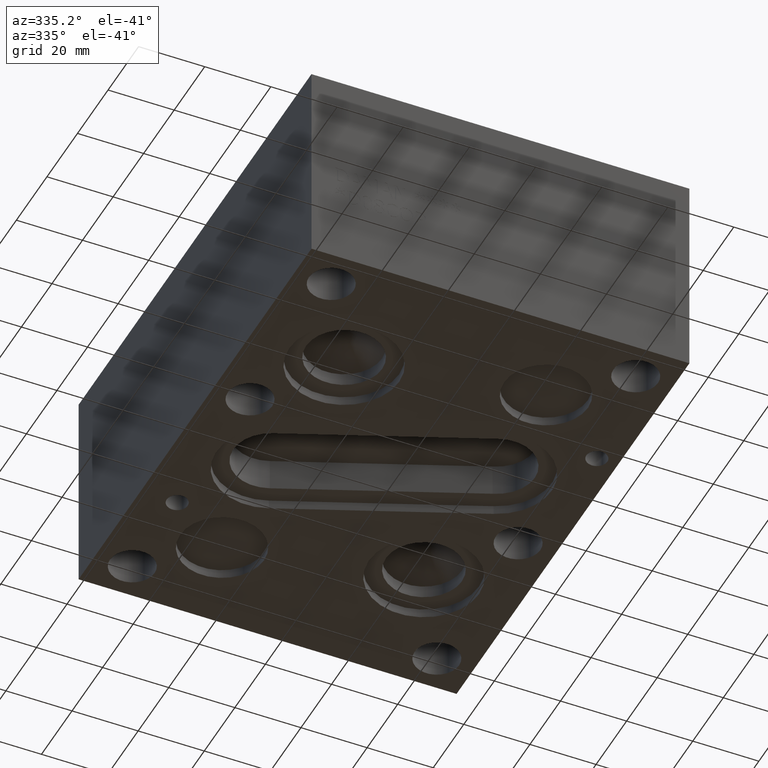
[diagram: clean part render]
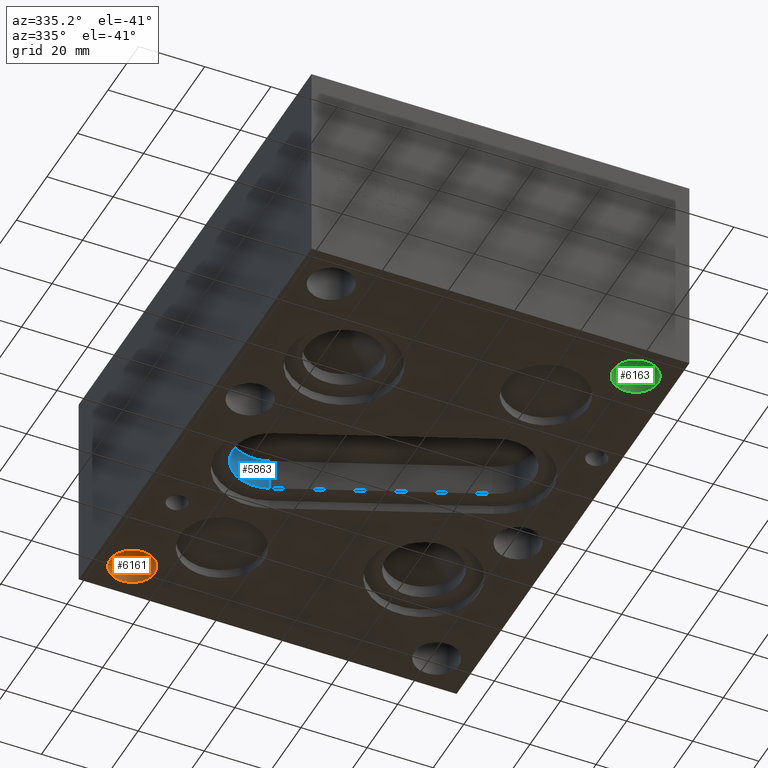
[diagram: same view with three faces highlighted in distinct colors, each labeled with its STEP entity id]
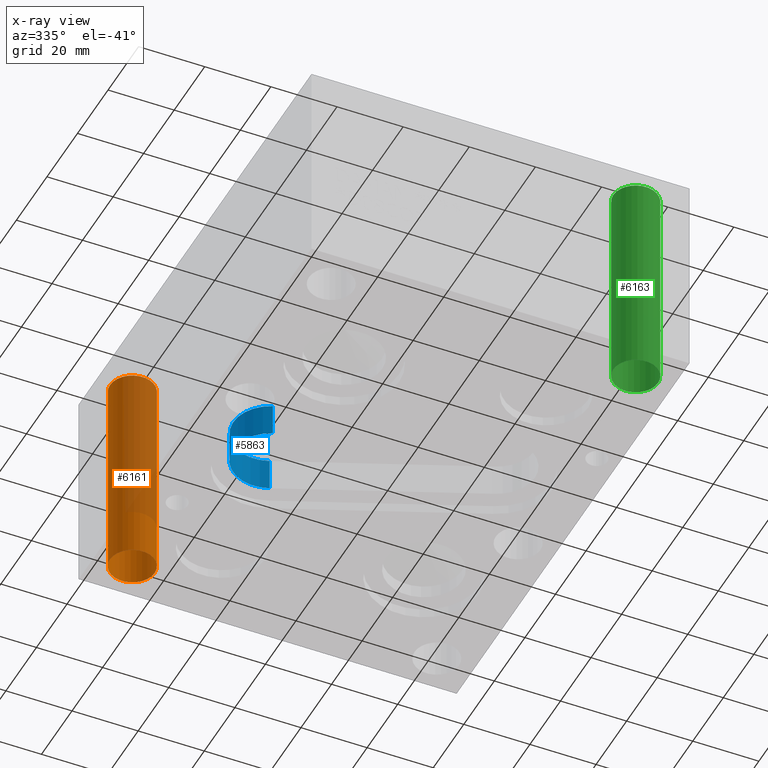
[diagram: x-ray of the same camera — body ghosted, the three highlighted faces saturated]
A machine part, auxiliary view with three faces highlighted in distinct colors.
The next image is the same camera in x-ray (body ghosted, the three faces saturated) — at least one of them is partly hidden behind the body in this view.
Their STEP definitions:

[orange] entity #6161 — the highlighted cylindrical surface (bore or boss wall) has radius 6.7437 mm, axis along (0, 0, -1).
#612=CIRCLE('',#6206,6.7437);
#613=CIRCLE('',#6207,6.7437);
#651=CIRCLE('',#6452,6.7437);
#674=CYLINDRICAL_SURFACE('',#6451,6.7437);
#978=FACE_OUTER_BOUND('',#1328,.T.);
#1328=EDGE_LOOP('',(#5614,#5615,#5616,#5617,#5618));
#1948=LINE('',#10452,#2562);
#2562=VECTOR('',#7612,6.7437);
#2597=VERTEX_POINT('',#7724);
#2598=VERTEX_POINT('',#7725);
#3133=VERTEX_POINT('',#10451);
#3172=EDGE_CURVE('',#2597,#2598,#612,.T.);
#3173=EDGE_CURVE('',#2598,#2597,#613,.T.);
#3966=EDGE_CURVE('',#2598,#3133,#1948,.T.);
#3967=EDGE_CURVE('',#3133,#3133,#651,.T.);
#5614=ORIENTED_EDGE('',*,*,#3172,.F.);
#5615=ORIENTED_EDGE('',*,*,#3173,.F.);
#5616=ORIENTED_EDGE('',*,*,#3966,.T.);
#5617=ORIENTED_EDGE('',*,*,#3967,.F.);
#5618=ORIENTED_EDGE('',*,*,#3966,.F.);
#6161=ADVANCED_FACE('',(#978),#674,.F.);
#6206=AXIS2_PLACEMENT_3D('',#7726,#6535,#6536);
#6207=AXIS2_PLACEMENT_3D('',#7727,#6537,#6538);
#6451=AXIS2_PLACEMENT_3D('',#10450,#7610,#7611);
#6452=AXIS2_PLACEMENT_3D('',#10453,#7613,#7614);
#6535=DIRECTION('center_axis',(0.,0.,1.));
#6536=DIRECTION('ref_axis',(1.,0.,0.));
#6537=DIRECTION('center_axis',(0.,0.,1.));
#6538=DIRECTION('ref_axis',(1.,0.,0.));
#7610=DIRECTION('center_axis',(0.,0.,-1.));
#7611=DIRECTION('ref_axis',(1.,0.,0.));
#7612=DIRECTION('',(0.,0.,1.));
#7613=DIRECTION('center_axis',(0.,0.,-1.));
#7614=DIRECTION('ref_axis',(1.,0.,0.));
#7724=CARTESIAN_POINT('',(17.8435,141.2748,0.));
#7725=CARTESIAN_POINT('',(4.3561,141.2748,0.));
#7726=CARTESIAN_POINT('Origin',(11.0998,141.2748,0.));
#7727=CARTESIAN_POINT('Origin',(11.0998,141.2748,0.));
#10450=CARTESIAN_POINT('Origin',(11.0998,141.2748,200.804631420692));
#10451=CARTESIAN_POINT('',(4.3561,141.2748,63.5));
#10452=CARTESIAN_POINT('',(4.3561,141.2748,200.804631420692));
#10453=CARTESIAN_POINT('Origin',(11.0998,141.2748,63.5));

[blue] entity #5863 — the highlighted cylindrical surface (partial cylindrical patch) has radius 11.5062 mm, axis along (0, 0, -1).
#599=CIRCLE('',#6187,11.5062);
#600=CIRCLE('',#6188,11.5062);
#660=CYLINDRICAL_SURFACE('',#6186,11.5062);
#680=FACE_OUTER_BOUND('',#989,.T.);
#989=EDGE_LOOP('',(#3987,#3988,#3989,#3990));
#1344=LINE('',#7661,#1958);
#1350=LINE('',#7673,#1964);
#1958=VECTOR('',#6474,10.);
#1964=VECTOR('',#6482,10.);
#2571=VERTEX_POINT('',#7657);
#2573=VERTEX_POINT('',#7660);
#2576=VERTEX_POINT('',#7667);
#2578=VERTEX_POINT('',#7671);
#3140=EDGE_CURVE('',#2571,#2573,#1344,.T.);
#3146=EDGE_CURVE('',#2576,#2578,#1350,.T.);
#3147=EDGE_CURVE('',#2576,#2571,#599,.T.);
#3148=EDGE_CURVE('',#2573,#2578,#600,.T.);
#3987=ORIENTED_EDGE('',*,*,#3140,.F.);
#3988=ORIENTED_EDGE('',*,*,#3147,.F.);
#3989=ORIENTED_EDGE('',*,*,#3146,.T.);
#3990=ORIENTED_EDGE('',*,*,#3148,.F.);
#5863=ADVANCED_FACE('',(#680),#660,.F.);
#6186=AXIS2_PLACEMENT_3D('',#7674,#6483,#6484);
#6187=AXIS2_PLACEMENT_3D('',#7675,#6485,#6486);
#6188=AXIS2_PLACEMENT_3D('',#7676,#6487,#6488);
#6474=DIRECTION('',(0.,0.,1.));
#6482=DIRECTION('',(0.,0.,1.));
#6483=DIRECTION('center_axis',(0.,0.,-1.));
#6484=DIRECTION('ref_axis',(-0.922991867569309,0.384819454291125,0.));
#6485=DIRECTION('center_axis',(0.,0.,1.));
#6486=DIRECTION('ref_axis',(1.,0.,0.));
#6487=DIRECTION('center_axis',(0.,0.,-1.));
#6488=DIRECTION('ref_axis',(1.,0.,0.));
#7657=CARTESIAN_POINT('',(24.1471903950355,77.492470973374,2.794));
#7660=CARTESIAN_POINT('',(24.1471903950355,77.492470973374,12.7));
#7661=CARTESIAN_POINT('',(24.1471903950355,77.492470973374,2.794));
#7667=CARTESIAN_POINT('',(33.0028096049646,98.732729026626,2.794));
#7671=CARTESIAN_POINT('',(33.0028096049646,98.732729026626,12.7));
#7673=CARTESIAN_POINT('',(33.0028096049646,98.732729026626,2.794));
#7674=CARTESIAN_POINT('Origin',(28.575,88.1126,6.35));
#7675=CARTESIAN_POINT('Origin',(28.575,88.1126,2.794));
#7676=CARTESIAN_POINT('Origin',(28.575,88.1126,12.7));

[green] entity #6163 — the highlighted cylindrical surface (bore or boss wall) has radius 6.7437 mm, axis along (0, 0, -1).
#608=CIRCLE('',#6202,6.7437);
#609=CIRCLE('',#6203,6.7437);
#653=CIRCLE('',#6456,6.7437);
#676=CYLINDRICAL_SURFACE('',#6455,6.7437);
#980=FACE_OUTER_BOUND('',#1330,.T.);
#1330=EDGE_LOOP('',(#5624,#5625,#5626,#5627,#5628));
#1950=LINE('',#10460,#2564);
#2564=VECTOR('',#7622,6.7437);
#2593=VERTEX_POINT('',#7716);
#2594=VERTEX_POINT('',#7717);
#3135=VERTEX_POINT('',#10459);
#3168=EDGE_CURVE('',#2593,#2594,#608,.T.);
#3169=EDGE_CURVE('',#2594,#2593,#609,.T.);
#3970=EDGE_CURVE('',#2594,#3135,#1950,.T.);
#3971=EDGE_CURVE('',#3135,#3135,#653,.T.);
#5624=ORIENTED_EDGE('',*,*,#3168,.F.);
#5625=ORIENTED_EDGE('',*,*,#3169,.F.);
#5626=ORIENTED_EDGE('',*,*,#3970,.T.);
#5627=ORIENTED_EDGE('',*,*,#3971,.F.);
#5628=ORIENTED_EDGE('',*,*,#3970,.F.);
#6163=ADVANCED_FACE('',(#980),#676,.F.);
#6202=AXIS2_PLACEMENT_3D('',#7718,#6527,#6528);
#6203=AXIS2_PLACEMENT_3D('',#7719,#6529,#6530);
#6455=AXIS2_PLACEMENT_3D('',#10458,#7620,#7621);
#6456=AXIS2_PLACEMENT_3D('',#10461,#7623,#7624);
#6527=DIRECTION('center_axis',(0.,0.,1.));
#6528=DIRECTION('ref_axis',(1.,0.,0.));
#6529=DIRECTION('center_axis',(0.,0.,1.));
#6530=DIRECTION('ref_axis',(1.,0.,0.));
#7620=DIRECTION('center_axis',(0.,0.,-1.));
#7621=DIRECTION('ref_axis',(1.,0.,0.));
#7622=DIRECTION('',(0.,0.,1.));
#7623=DIRECTION('center_axis',(0.,0.,-1.));
#7624=DIRECTION('ref_axis',(1.,0.,0.));
#7716=CARTESIAN_POINT('',(109.9312,11.0998,0.));
#7717=CARTESIAN_POINT('',(96.4438,11.0998,0.));
#7718=CARTESIAN_POINT('Origin',(103.1875,11.0998,0.));
#7719=CARTESIAN_POINT('Origin',(103.1875,11.0998,0.));
#10458=CARTESIAN_POINT('Origin',(103.1875,11.0998,200.804631420692));
#10459=CARTESIAN_POINT('',(96.4438,11.0998,63.5));
#10460=CARTESIAN_POINT('',(96.4438,11.0998,200.804631420692));
#10461=CARTESIAN_POINT('Origin',(103.1875,11.0998,63.5));